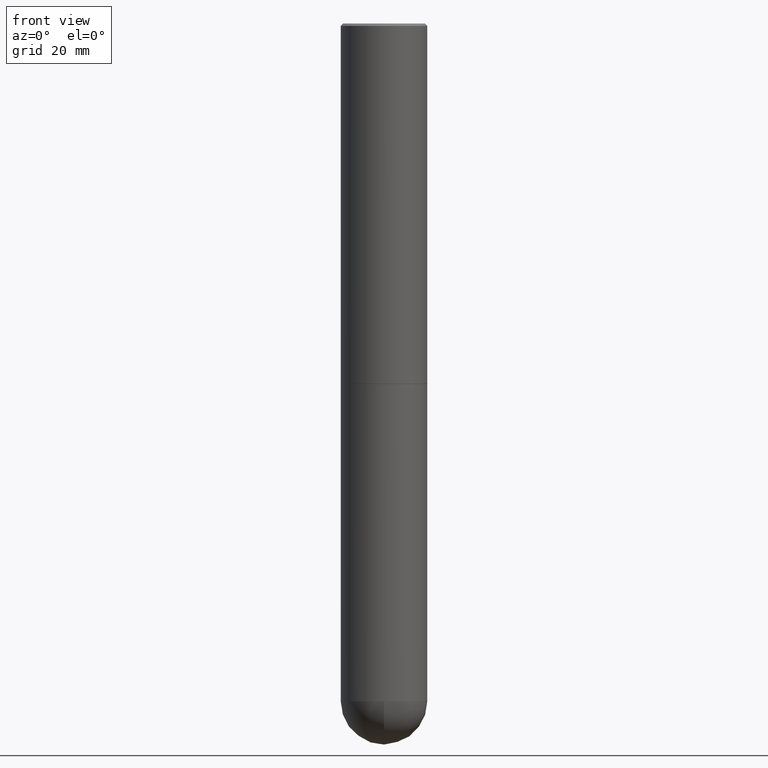
[diagram: clean part render]
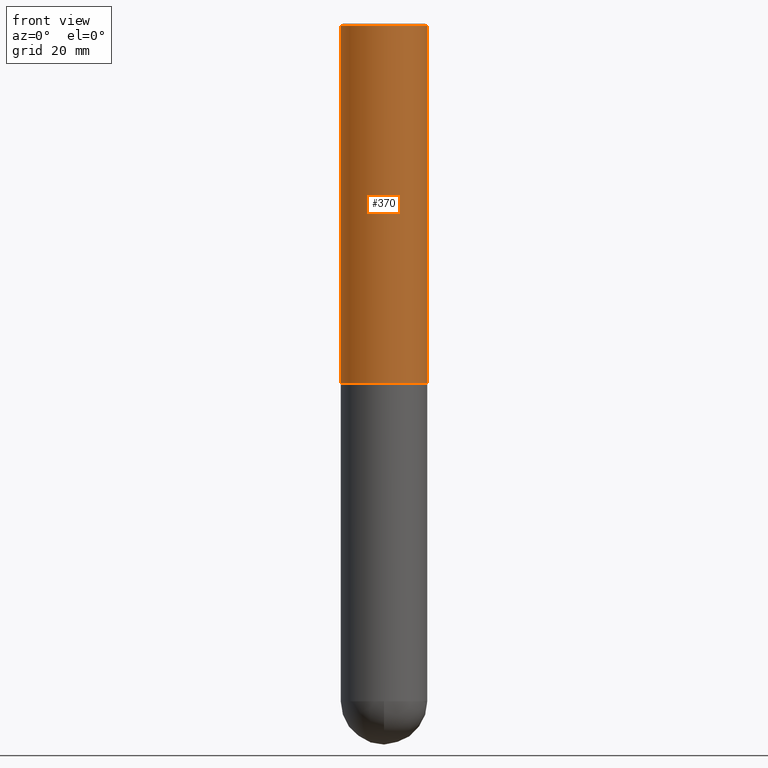
[diagram: same view with one face highlighted and labeled with its STEP entity id]
A machine part, front view. The second image highlights one B-rep face of the part: STEP entity #370.
In plain terms, the highlighted cylindrical surface (partial cylindrical patch) has radius 9.0005 mm, axis along (-0, 0, 1).
Its self-contained STEP definition (entity closure, byte-faithful):
#5 = VERTEX_POINT ( 'NONE', #23 ) ;
#23 = CARTESIAN_POINT ( 'NONE',  ( 0.3543499999999999983, -2.500847092287205690E-15, -0.02000000000000008021 ) ) ;
#25 = ORIENTED_EDGE ( 'NONE', *, *, #262, .T. ) ;
#27 = CIRCLE ( 'NONE', #182, 0.3543500000000004424 ) ;
#28 = AXIS2_PLACEMENT_3D ( 'NONE', #404, #266, #228 ) ;
#30 = CARTESIAN_POINT ( 'NONE',  ( 4.890937612370293302E-31, -6.982962677686318726E-17, -0.02000000000000008021 ) ) ;
#40 = LINE ( 'NONE', #344, #337 ) ;
#68 = ORIENTED_EDGE ( 'NONE', *, *, #95, .T. ) ;
#73 = ORIENTED_EDGE ( 'NONE', *, *, #397, .F. ) ;
#93 = FACE_OUTER_BOUND ( 'NONE', #271, .T. ) ;
#94 = DIRECTION ( 'NONE',  ( 1.000000000000000000, -6.982962677686266711E-15, 0.000000000000000000 ) ) ;
#95 = EDGE_CURVE ( 'NONE', #357, #375, #27, .T. ) ;
#120 = DIRECTION ( 'NONE',  ( -2.445468806185136597E-29, 3.491481338843145583E-15, 1.000000000000000000 ) ) ;
#128 = LINE ( 'NONE', #227, #192 ) ;
#161 = CYLINDRICAL_SURFACE ( 'NONE', #28, 0.3543500000000002204 ) ;
#173 = CIRCLE ( 'NONE', #408, 0.3543499999999999983 ) ;
#182 = AXIS2_PLACEMENT_3D ( 'NONE', #405, #120, #210 ) ;
#185 = CARTESIAN_POINT ( 'NONE',  ( 0.3543500000000004424, -1.278021829270144662E-14, -2.951700000000000212 ) ) ;
#192 = VECTOR ( 'NONE', #323, 39.37007874015748143 ) ;
#210 = DIRECTION ( 'NONE',  ( 1.000000000000000000, -6.982962677686268288E-15, 0.000000000000000000 ) ) ;
#227 = CARTESIAN_POINT ( 'NONE',  ( -0.3543500000000002204, 2.517808184165916574E-15, -1.743024649231827187E-29 ) ) ;
#228 = DIRECTION ( 'NONE',  ( 1.000000000000000000, -6.982962677686266711E-15, 4.876176775795935793E-29 ) ) ;
#233 = ORIENTED_EDGE ( 'NONE', *, *, #327, .F. ) ;
#262 = EDGE_CURVE ( 'NONE', #375, #5, #40, .T. ) ;
#265 = DIRECTION ( 'NONE',  ( -2.445468806185136597E-29, 3.491481338843145583E-15, 1.000000000000000000 ) ) ;
#266 = DIRECTION ( 'NONE',  ( -2.445468806185136597E-29, 3.491481338843145583E-15, 1.000000000000000000 ) ) ;
#271 = EDGE_LOOP ( 'NONE', ( #73, #68, #25, #233 ) ) ;
#278 = DIRECTION ( 'NONE',  ( -2.445468806185136877E-29, 3.491481338843145188E-15, 1.000000000000000000 ) ) ;
#323 = DIRECTION ( 'NONE',  ( -2.445468806185136877E-29, 3.491481338843145188E-15, 1.000000000000000000 ) ) ;
#327 = EDGE_CURVE ( 'NONE', #353, #5, #173, .T. ) ;
#328 = CARTESIAN_POINT ( 'NONE',  ( -0.3543500000000004424, -2.670009363154166740E-15, -2.951700000000000212 ) ) ;
#337 = VECTOR ( 'NONE', #278, 39.37007874015748143 ) ;
#344 = CARTESIAN_POINT ( 'NONE',  ( 0.3543500000000002204, -2.474412824838130272E-15, 1.727873240503290870E-29 ) ) ;
#353 = VERTEX_POINT ( 'NONE', #379 ) ;
#357 = VERTEX_POINT ( 'NONE', #328 ) ;
#370 = ADVANCED_FACE ( 'NONE', ( #93 ), #161, .T. ) ;
#375 = VERTEX_POINT ( 'NONE', #185 ) ;
#379 = CARTESIAN_POINT ( 'NONE',  ( -0.3543499999999999983, 2.404583198061265396E-15, -0.02000000000000008021 ) ) ;
#397 = EDGE_CURVE ( 'NONE', #357, #353, #128, .T. ) ;
#404 = CARTESIAN_POINT ( 'NONE',  ( 0.000000000000000000, 0.000000000000000000, 0.000000000000000000 ) ) ;
#405 = CARTESIAN_POINT ( 'NONE',  ( 7.218290275216666916E-29, -1.030580546786331359E-14, -2.951700000000000212 ) ) ;
#408 = AXIS2_PLACEMENT_3D ( 'NONE', #30, #265, #94 ) ;